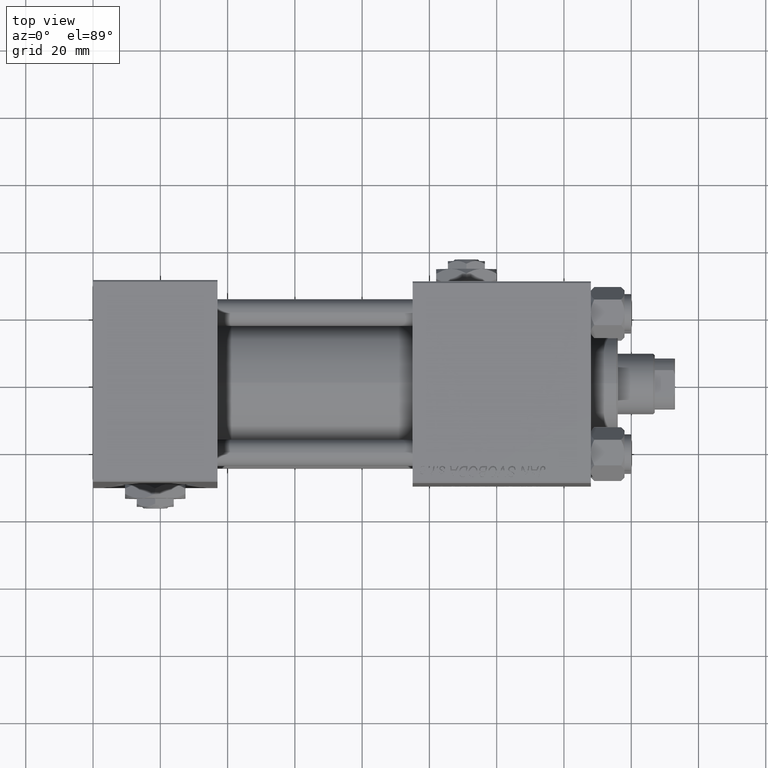
[diagram: clean part render]
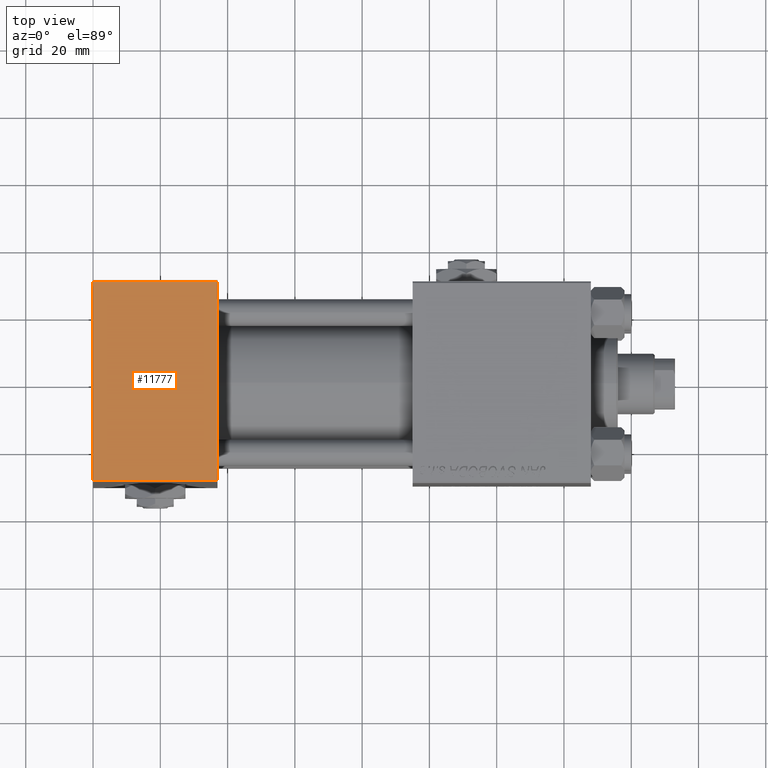
[diagram: same view with one face highlighted and labeled with its STEP entity id]
A machine part, top view. The second image highlights one B-rep face of the part: STEP entity #11777.
In plain terms, the highlighted planar face has unit normal (0, 0, -1).
Its self-contained STEP definition (entity closure, byte-faithful):
#2817 = ORIENTED_EDGE ( 'NONE', *, *, #30998, .T. ) ;
#3079 = VERTEX_POINT ( 'NONE', #36415 ) ;
#3443 = VECTOR ( 'NONE', #22294, 1000.000000000000000 ) ;
#4017 = FACE_OUTER_BOUND ( 'NONE', #26063, .T. ) ;
#5185 = CARTESIAN_POINT ( 'NONE',  ( 0.000000000000000000, 29.50000000000000355, 54.50000000000001421 ) ) ;
#5784 = EDGE_CURVE ( 'NONE', #6975, #22907, #46949, .T. ) ;
#6975 = VERTEX_POINT ( 'NONE', #33779 ) ;
#7150 = CARTESIAN_POINT ( 'NONE',  ( 0.000000000000000000, 29.50000000000000355, 54.50000000000001421 ) ) ;
#11272 = VECTOR ( 'NONE', #47889, 1000.000000000000000 ) ;
#11632 = LINE ( 'NONE', #27605, #3443 ) ;
#11777 = ADVANCED_FACE ( 'NONE', ( #4017 ), #40153, .F. ) ;
#12252 = CARTESIAN_POINT ( 'NONE',  ( 0.000000000000000000, 30.00000000000000355, 54.50000000000001421 ) ) ;
#14957 = VECTOR ( 'NONE', #50886, 1000.000000000000000 ) ;
#17104 = ORIENTED_EDGE ( 'NONE', *, *, #38700, .F. ) ;
#18519 = EDGE_CURVE ( 'NONE', #46634, #3079, #11632, .T. ) ;
#22294 = DIRECTION ( 'NONE',  ( 1.000000000000000000, 0.000000000000000000, 0.000000000000000000 ) ) ;
#22907 = VERTEX_POINT ( 'NONE', #5185 ) ;
#25304 = CARTESIAN_POINT ( 'NONE',  ( 37.00000000000000000, 30.00000000000000355, 54.50000000000001421 ) ) ;
#25835 = CARTESIAN_POINT ( 'NONE',  ( 0.000000000000000000, -29.50000000000000711, 54.50000000000000711 ) ) ;
#26063 = EDGE_LOOP ( 'NONE', ( #2817, #46558, #17104, #38870 ) ) ;
#27605 = CARTESIAN_POINT ( 'NONE',  ( 37.00000000000000000, -29.50000000000000711, 54.50000000000000711 ) ) ;
#30998 = EDGE_CURVE ( 'NONE', #22907, #46634, #36345, .T. ) ;
#33779 = CARTESIAN_POINT ( 'NONE',  ( 37.00000000000000000, 29.50000000000000355, 54.50000000000001421 ) ) ;
#36206 = DIRECTION ( 'NONE',  ( 0.000000000000000000, 1.000000000000000000, 1.156482317317871478E-16 ) ) ;
#36345 = LINE ( 'NONE', #12252, #11272 ) ;
#36415 = CARTESIAN_POINT ( 'NONE',  ( 37.00000000000000000, -29.50000000000000711, 54.50000000000000711 ) ) ;
#38700 = EDGE_CURVE ( 'NONE', #6975, #3079, #43424, .T. ) ;
#38870 = ORIENTED_EDGE ( 'NONE', *, *, #5784, .T. ) ;
#39004 = VECTOR ( 'NONE', #44964, 1000.000000000000000 ) ;
#40153 = PLANE ( 'NONE',  #41971 ) ;
#41971 = AXIS2_PLACEMENT_3D ( 'NONE', #48020, #44087, #36206 ) ;
#43424 = LINE ( 'NONE', #25304, #39004 ) ;
#44087 = DIRECTION ( 'NONE',  ( 0.000000000000000000, 1.156482317317871478E-16, -1.000000000000000000 ) ) ;
#44964 = DIRECTION ( 'NONE',  ( 0.000000000000000000, -1.000000000000000000, -1.156482317317871478E-16 ) ) ;
#46558 = ORIENTED_EDGE ( 'NONE', *, *, #18519, .T. ) ;
#46634 = VERTEX_POINT ( 'NONE', #25835 ) ;
#46949 = LINE ( 'NONE', #7150, #14957 ) ;
#47889 = DIRECTION ( 'NONE',  ( 0.000000000000000000, -1.000000000000000000, -1.156482317317871478E-16 ) ) ;
#48020 = CARTESIAN_POINT ( 'NONE',  ( 37.00000000000000000, 30.00000000000000355, 54.50000000000001421 ) ) ;
#50886 = DIRECTION ( 'NONE',  ( -1.000000000000000000, 0.000000000000000000, 0.000000000000000000 ) ) ;